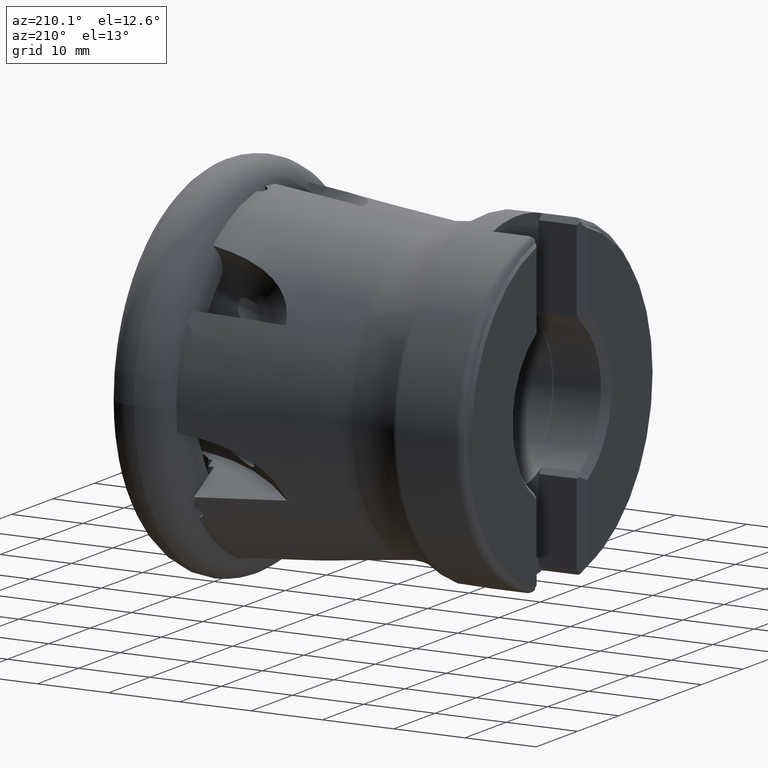
[diagram: clean part render]
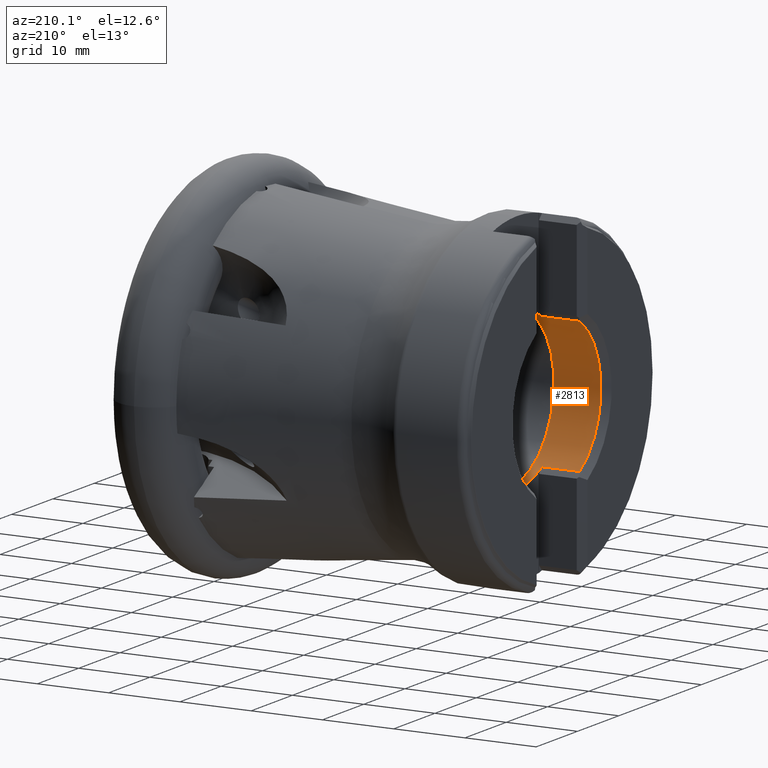
[diagram: same view with one face highlighted and labeled with its STEP entity id]
A machine part, auxiliary view. The second image highlights one B-rep face of the part: STEP entity #2813.
In plain terms, the highlighted cylindrical surface (partial cylindrical patch) has radius 11.075 mm, axis along (1, -0, -0).
Its self-contained STEP definition (entity closure, byte-faithful):
#483 = EDGE_LOOP ( 'NONE', ( #1981, #1980, #1928, #1926, #1915, #1907, #2478, #2471, #1923, #1962, #1961, #1960 ) ) ;
#953 = CARTESIAN_POINT ( 'NONE',  ( -41.29999999999999700, 0.0000000000000000000, 0.0000000000000000000 ) ) ;
#954 = DIRECTION ( 'NONE',  ( 1.000000000000000000, -0.0000000000000000000, -0.0000000000000000000 ) ) ;
#955 = DIRECTION ( 'NONE',  ( 0.0000000000000000000, 0.0000000000000000000, -1.000000000000000000 ) ) ;
#1764 = EDGE_CURVE ( 'NONE', #2061, #2013, #4782, .T. ) ;
#1842 = EDGE_CURVE ( 'NONE', #2038, #2037, #4866, .T. ) ;
#1843 = EDGE_CURVE ( 'NONE', #2037, #2061, #4871, .T. ) ;
#1844 = EDGE_CURVE ( 'NONE', #2042, #2013, #4872, .T. ) ;
#1845 = EDGE_CURVE ( 'NONE', #2042, #7446, #4869, .T. ) ;
#1846 = EDGE_CURVE ( 'NONE', #7446, #7467, #4876, .T. ) ;
#1847 = EDGE_CURVE ( 'NONE', #7467, #7449, #4877, .T. ) ;
#1848 = EDGE_CURVE ( 'NONE', #7449, #7452, #4879, .T. ) ;
#1849 = EDGE_CURVE ( 'NONE', #7482, #7452, #4880, .T. ) ;
#1850 = EDGE_CURVE ( 'NONE', #2039, #7482, #4874, .T. ) ;
#1851 = EDGE_CURVE ( 'NONE', #2039, #3029, #4882, .T. ) ;
#1852 = EDGE_CURVE ( 'NONE', #3029, #2038, #4884, .T. ) ;
#1907 = ORIENTED_EDGE ( 'NONE', *, *, #1846, .T. ) ;
#1915 = ORIENTED_EDGE ( 'NONE', *, *, #1845, .T. ) ;
#1923 = ORIENTED_EDGE ( 'NONE', *, *, #1849, .F. ) ;
#1926 = ORIENTED_EDGE ( 'NONE', *, *, #1844, .F. ) ;
#1928 = ORIENTED_EDGE ( 'NONE', *, *, #1764, .T. ) ;
#1960 = ORIENTED_EDGE ( 'NONE', *, *, #1852, .T. ) ;
#1961 = ORIENTED_EDGE ( 'NONE', *, *, #1851, .T. ) ;
#1962 = ORIENTED_EDGE ( 'NONE', *, *, #1850, .F. ) ;
#1980 = ORIENTED_EDGE ( 'NONE', *, *, #1843, .T. ) ;
#1981 = ORIENTED_EDGE ( 'NONE', *, *, #1842, .T. ) ;
#2013 = VERTEX_POINT ( 'NONE', #5108 ) ;
#2037 = VERTEX_POINT ( 'NONE', #5132 ) ;
#2038 = VERTEX_POINT ( 'NONE', #5133 ) ;
#2039 = VERTEX_POINT ( 'NONE', #5134 ) ;
#2042 = VERTEX_POINT ( 'NONE', #5137 ) ;
#2061 = VERTEX_POINT ( 'NONE', #5156 ) ;
#2471 = ORIENTED_EDGE ( 'NONE', *, *, #1848, .T. ) ;
#2478 = ORIENTED_EDGE ( 'NONE', *, *, #1847, .T. ) ;
#2813 = ADVANCED_FACE ( 'NONE', ( #4264 ), #4267, .F. ) ;
#3029 = VERTEX_POINT ( 'NONE', #3895 ) ;
#3449 = AXIS2_PLACEMENT_3D ( 'NONE', #953, #954, #955 ) ;
#3755 = DIRECTION ( 'NONE',  ( 0.0000000000000000000, 0.0000000000000000000, -1.000000000000000000 ) ) ;
#3756 = CARTESIAN_POINT ( 'NONE',  ( 0.0000000000000000000, 0.0000000000000000000, 0.0000000000000000000 ) ) ;
#3757 = DIRECTION ( 'NONE',  ( 1.000000000000000000, -0.0000000000000000000, -0.0000000000000000000 ) ) ;
#3895 = CARTESIAN_POINT ( 'NONE',  ( -42.60000000000000100, -5.200000000000001100, 9.778324242936511400 ) ) ;
#4264 = FACE_OUTER_BOUND ( 'NONE', #483, .T. ) ;
#4267 = CYLINDRICAL_SURFACE ( 'NONE', #6345, 11.07499999999999400 ) ;
#4782 = CIRCLE ( 'NONE', #3449, 11.07499999999999600 ) ;
#4866 = CIRCLE ( 'NONE', #7516, 11.07499999999999400 ) ;
#4869 = CIRCLE ( 'NONE', #7517, 11.07499999999999400 ) ;
#4871 = LINE ( 'NONE', #5901, #4873 ) ;
#4872 = LINE ( 'NONE', #5906, #4875 ) ;
#4873 = VECTOR ( 'NONE', #5897, 1000.000000000000000 ) ;
#4874 = LINE ( 'NONE', #5920, #4883 ) ;
#4875 = VECTOR ( 'NONE', #5908, 1000.000000000000000 ) ;
#4876 = LINE ( 'NONE', #5907, #4878 ) ;
#4877 = CIRCLE ( 'NONE', #7518, 11.07499999999999400 ) ;
#4878 = VECTOR ( 'NONE', #5902, 1000.000000000000000 ) ;
#4879 = LINE ( 'NONE', #5909, #4881 ) ;
#4880 = CIRCLE ( 'NONE', #7519, 11.07499999999999400 ) ;
#4881 = VECTOR ( 'NONE', #5910, 1000.000000000000000 ) ;
#4882 = CIRCLE ( 'NONE', #7520, 11.07499999999999400 ) ;
#4883 = VECTOR ( 'NONE', #5914, 1000.000000000000000 ) ;
#4884 = LINE ( 'NONE', #5919, #4886 ) ;
#4886 = VECTOR ( 'NONE', #5918, 1000.000000000000000 ) ;
#5108 = CARTESIAN_POINT ( 'NONE',  ( -41.29999999999999700, 0.0000000000000000000, -11.07499999999999600 ) ) ;
#5132 = CARTESIAN_POINT ( 'NONE',  ( -42.54999999999999700, 1.356296330055693000E-015, 11.07499999999999400 ) ) ;
#5133 = CARTESIAN_POINT ( 'NONE',  ( -42.54999999999999700, -5.200000000000003700, 9.778324242936509600 ) ) ;
#5134 = CARTESIAN_POINT ( 'NONE',  ( -42.60000000000000100, -5.947417159606041900, 9.342582840393950100 ) ) ;
#5137 = CARTESIAN_POINT ( 'NONE',  ( -42.54999999999999700, 0.0000000000000000000, -11.07499999999999400 ) ) ;
#5156 = CARTESIAN_POINT ( 'NONE',  ( -41.29999999999999700, 1.356296330055693400E-015, 11.07499999999999600 ) ) ;
#5897 = DIRECTION ( 'NONE',  ( 1.000000000000000000, -0.0000000000000000000, -0.0000000000000000000 ) ) ;
#5901 = CARTESIAN_POINT ( 'NONE',  ( 0.0000000000000000000, 1.356296330055693000E-015, 11.07499999999999400 ) ) ;
#5902 = DIRECTION ( 'NONE',  ( -1.000000000000000000, 0.0000000000000000000, 0.0000000000000000000 ) ) ;
#5903 = CARTESIAN_POINT ( 'NONE',  ( -42.54999999999999700, 0.0000000000000000000, 0.0000000000000000000 ) ) ;
#5904 = DIRECTION ( 'NONE',  ( -1.000000000000000000, -0.0000000000000000000, -0.0000000000000000000 ) ) ;
#5905 = DIRECTION ( 'NONE',  ( 0.0000000000000000000, 0.0000000000000000000, -1.000000000000000000 ) ) ;
#5906 = CARTESIAN_POINT ( 'NONE',  ( 0.0000000000000000000, 0.0000000000000000000, -11.07499999999999400 ) ) ;
#5907 = CARTESIAN_POINT ( 'NONE',  ( 0.0000000000000000000, -5.200000000000002000, -9.778324242936507800 ) ) ;
#5908 = DIRECTION ( 'NONE',  ( 1.000000000000000000, -0.0000000000000000000, -0.0000000000000000000 ) ) ;
#5909 = CARTESIAN_POINT ( 'NONE',  ( 0.0000000000000000000, -5.947417159606034800, -9.342582840393953700 ) ) ;
#5910 = DIRECTION ( 'NONE',  ( -1.000000000000000000, 0.0000000000000000000, 0.0000000000000000000 ) ) ;
#5911 = CARTESIAN_POINT ( 'NONE',  ( -42.54999999999999700, 0.0000000000000000000, 0.0000000000000000000 ) ) ;
#5912 = DIRECTION ( 'NONE',  ( -1.000000000000000000, -0.0000000000000000000, -0.0000000000000000000 ) ) ;
#5913 = DIRECTION ( 'NONE',  ( 0.0000000000000000000, 0.0000000000000000000, -1.000000000000000000 ) ) ;
#5914 = DIRECTION ( 'NONE',  ( -1.000000000000000000, 0.0000000000000000000, 0.0000000000000000000 ) ) ;
#5915 = CARTESIAN_POINT ( 'NONE',  ( -42.60000000000000100, 0.0000000000000000000, 0.0000000000000000000 ) ) ;
#5916 = DIRECTION ( 'NONE',  ( -1.000000000000000000, -0.0000000000000000000, -0.0000000000000000000 ) ) ;
#5917 = DIRECTION ( 'NONE',  ( 0.0000000000000000000, 0.0000000000000000000, -1.000000000000000000 ) ) ;
#5918 = DIRECTION ( 'NONE',  ( 1.000000000000000000, -0.0000000000000000000, -0.0000000000000000000 ) ) ;
#5919 = CARTESIAN_POINT ( 'NONE',  ( 0.0000000000000000000, -5.200000000000002000, 9.778324242936507800 ) ) ;
#5920 = CARTESIAN_POINT ( 'NONE',  ( 0.0000000000000000000, -5.947417159606034800, 9.342582840393953700 ) ) ;
#5921 = CARTESIAN_POINT ( 'NONE',  ( -47.89999999999999900, 0.0000000000000000000, 0.0000000000000000000 ) ) ;
#5922 = DIRECTION ( 'NONE',  ( 1.000000000000000000, -0.0000000000000000000, -0.0000000000000000000 ) ) ;
#5923 = DIRECTION ( 'NONE',  ( 0.0000000000000000000, 0.0000000000000000000, -1.000000000000000000 ) ) ;
#5926 = CARTESIAN_POINT ( 'NONE',  ( -42.60000000000000100, 0.0000000000000000000, 0.0000000000000000000 ) ) ;
#5927 = DIRECTION ( 'NONE',  ( -1.000000000000000000, -0.0000000000000000000, -0.0000000000000000000 ) ) ;
#5928 = DIRECTION ( 'NONE',  ( 0.0000000000000000000, -1.509903313490213200E-014, -1.000000000000000000 ) ) ;
#6345 = AXIS2_PLACEMENT_3D ( 'NONE', #3756, #3757, #3755 ) ;
#7399 = CARTESIAN_POINT ( 'NONE',  ( -42.54999999999999700, -5.200000000000003700, -9.778324242936509600 ) ) ;
#7400 = CARTESIAN_POINT ( 'NONE',  ( -42.60000000000000100, -5.947417159606041900, -9.342582840393950100 ) ) ;
#7401 = CARTESIAN_POINT ( 'NONE',  ( -47.89999999999999900, -5.947417159606035700, -9.342582840393953700 ) ) ;
#7418 = CARTESIAN_POINT ( 'NONE',  ( -42.60000000000000100, -5.200000000000002000, -9.778324242936507800 ) ) ;
#7423 = CARTESIAN_POINT ( 'NONE',  ( -47.89999999999999900, -5.947417159606034800, 9.342582840393953700 ) ) ;
#7446 = VERTEX_POINT ( 'NONE', #7399 ) ;
#7449 = VERTEX_POINT ( 'NONE', #7400 ) ;
#7452 = VERTEX_POINT ( 'NONE', #7401 ) ;
#7467 = VERTEX_POINT ( 'NONE', #7418 ) ;
#7482 = VERTEX_POINT ( 'NONE', #7423 ) ;
#7516 = AXIS2_PLACEMENT_3D ( 'NONE', #5903, #5904, #5905 ) ;
#7517 = AXIS2_PLACEMENT_3D ( 'NONE', #5911, #5912, #5913 ) ;
#7518 = AXIS2_PLACEMENT_3D ( 'NONE', #5915, #5916, #5917 ) ;
#7519 = AXIS2_PLACEMENT_3D ( 'NONE', #5921, #5922, #5923 ) ;
#7520 = AXIS2_PLACEMENT_3D ( 'NONE', #5926, #5927, #5928 ) ;